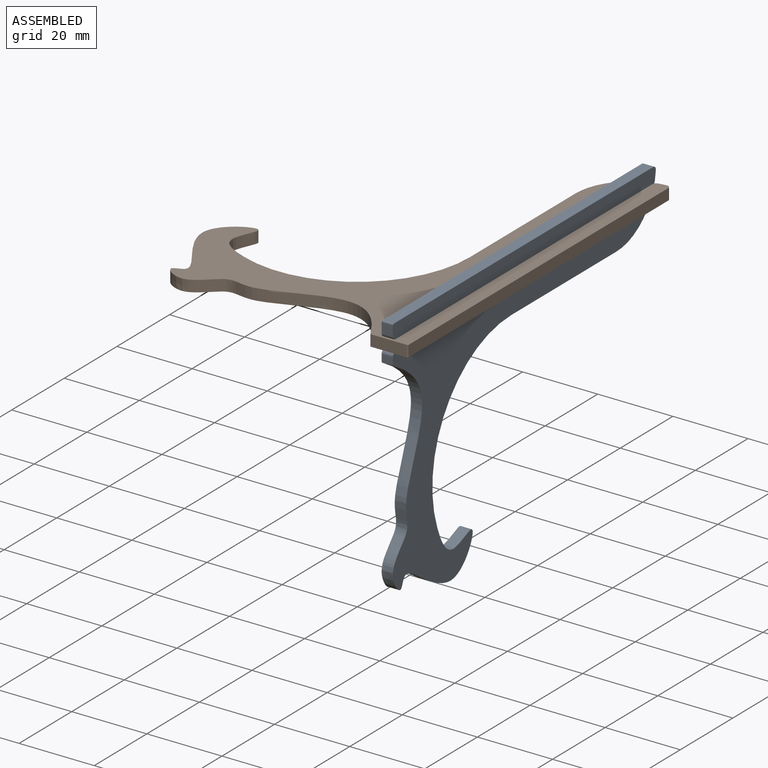
[diagram: assembled view]
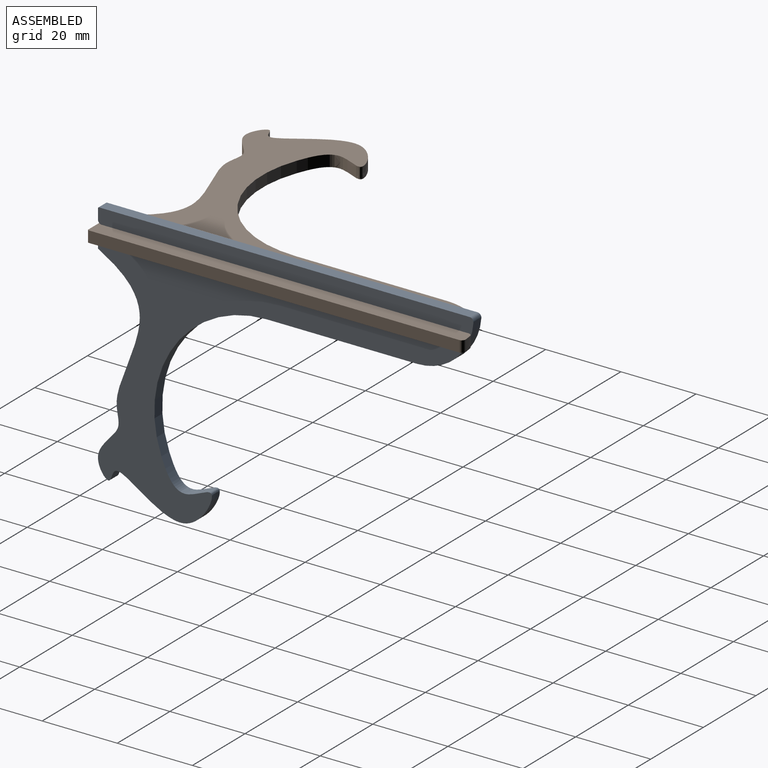
[diagram: assembled view, second angle]
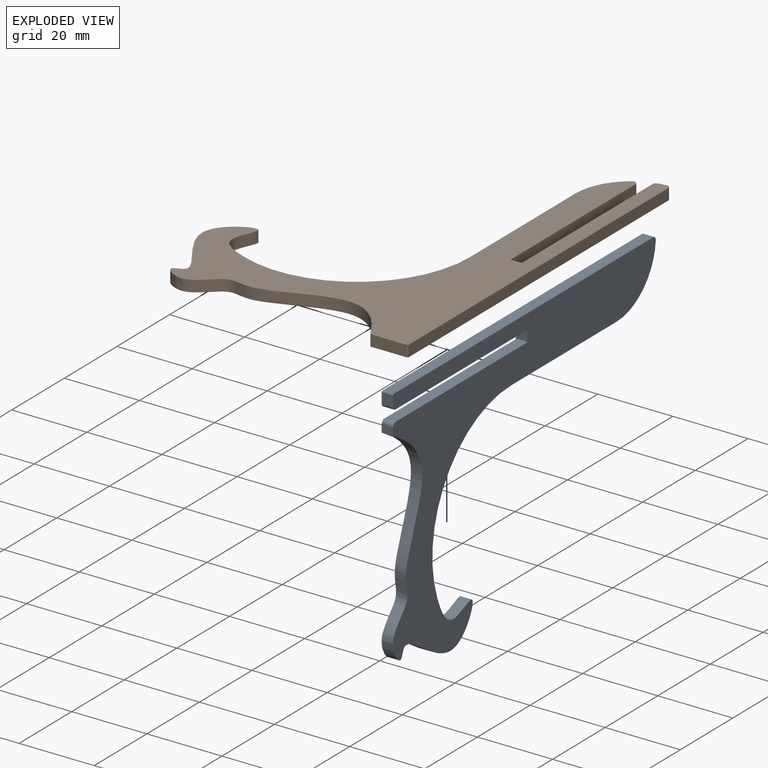
[diagram: exploded view]
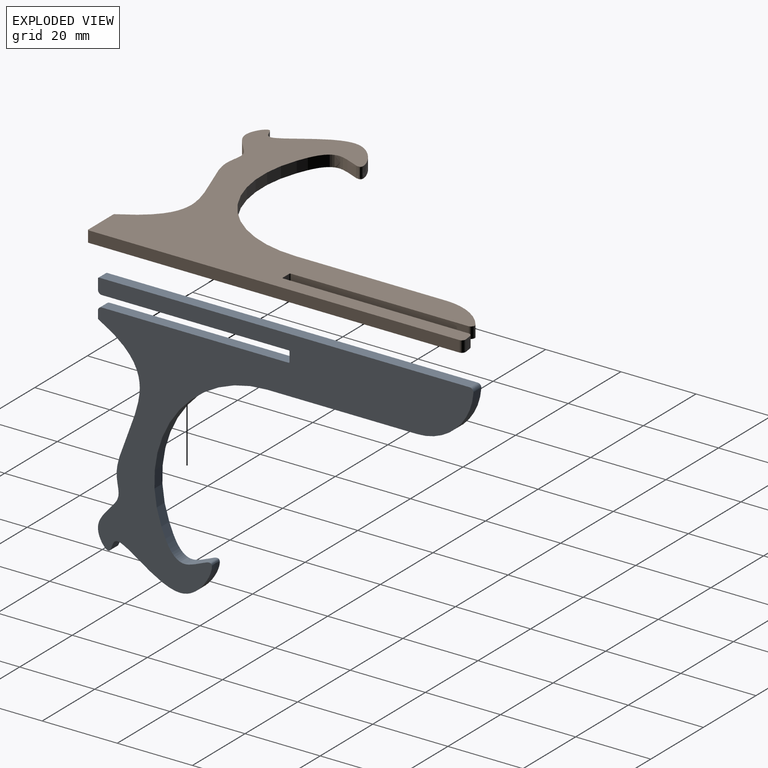
[diagram: exploded view, second angle]
ASSEMBLY  parts=2 mates=4
PART A: 18 faces, bbox 71.1x101x3 mm
  f0: plane 49.7x3mm, normal (1,0,0), area 149.1mm2, adj f1,f15,f16,f17
  f1: cylinder r=0.3mm len=3mm, axis (0,0,-1), area 1.4mm2, adj f0,f2,f16,f17
  f2: plane 3x2.4mm, normal (0,-1,0), area 7.2mm2, adj f1,f3,f16,f17
  f3: cylinder r=0.3mm len=3mm, axis (0,0,-1), area 1.4mm2, adj f2,f4,f16,f17
  f4: plane 49.7x3mm, normal (-1,0,0), area 149.1mm2, adj f3,f5,f16,f17
  f5: cylinder r=1mm len=3mm, axis (0,0,-1), area 4.7mm2, adj f4,f6,f16,f17
  f6: plane 3x2.7mm, normal (0,-1,0), area 8.1mm2, adj f5,f7,f16,f17
  f7: cylinder r=0.3mm len=3mm, axis (0,0,-1), area 1.4mm2, adj f6,f8,f16,f17
  f8: plane 98.66x3mm, normal (1,0,0), area 296mm2, adj f7,f9,f16,f17
  f9: cylinder r=1mm len=3mm, axis (0,0,-1), area 4.9mm2, adj f8,f10,f16,f17
  f10: cylinder r=15mm len=14.96mm, axis (0,0,-1), area 67.5mm2, adj f9,f11,f16,f17
  f11: plane 40x3mm, normal (-1,0,0), area 120mm2, adj f10,f12,f16,f17
  f12: cylinder r=30mm len=40.48mm, axis (0,0,-1), area 173.5mm2, adj f11,f13,f16,f17
  f13: extruded ~59.99x30.34mm, area 358.6mm2, adj f12,f14,f16,f17
  f14: plane 3x2mm, normal (0,-1,0), area 6mm2, adj f13,f15,f16,f17
  f15: cylinder r=1mm len=3mm, axis (0,0,-1), area 4.7mm2, adj f0,f14,f16,f17
  f16: plane 101.03x71.06mm, normal (0,0,1), area 2021.9mm2, adj f0,f1,f2,f3,f4,f5,f6,f7
  f17: plane 101.03x71.06mm, normal (0,0,-1), area 2021.9mm2, adj f0,f1,f2,f3,f4,f5,f6,f7
PART B: 18 faces, bbox 71.1x101x3 mm
  f0: plane 47.19x3mm, normal (1,0,0), area 141.6mm2, adj f1,f15,f16,f17
  f1: cylinder r=1mm len=3mm, axis (0,0,-1), area 6.5mm2, adj f0,f2,f16,f17
  f2: cylinder r=15mm len=12.31mm, axis (0,0,-1), area 43.3mm2, adj f1,f3,f16,f17
  f3: plane 40x3mm, normal (-1,0,0), area 120mm2, adj f2,f4,f16,f17
  f4: cylinder r=30mm len=40.48mm, axis (0,0,-1), area 173.5mm2, adj f3,f5,f16,f17
  f5: extruded ~59.99x30.34mm, area 358.6mm2, adj f4,f6,f16,f17
  f6: plane 9.7x3mm, normal (0,-1,0), area 29.1mm2, adj f5,f7,f16,f17
  f7: cylinder r=0.3mm len=3mm, axis (0,0,-1), area 1.4mm2, adj f6,f8,f16,f17
  f8: plane 98.66x3mm, normal (1,0,0), area 296mm2, adj f7,f9,f16,f17
  f9: cylinder r=1mm len=3mm, axis (0,0,-1), area 4.9mm2, adj f8,f10,f16,f17
  f10: cylinder r=15mm len=3mm, axis (0,0,-1), area 6.5mm2, adj f9,f11,f16,f17
  f11: cylinder r=1mm len=3mm, axis (0,0,-1), area 4.1mm2, adj f10,f12,f16,f17
  f12: plane 49.37x3mm, normal (-1,0,0), area 148.1mm2, adj f11,f13,f16,f17
  f13: cylinder r=0.3mm len=3mm, axis (0,0,-1), area 1.4mm2, adj f12,f14,f16,f17
  f14: plane 3x2.4mm, normal (0,1,0), area 7.2mm2, adj f13,f15,f16,f17
  f15: cylinder r=0.3mm len=3mm, axis (0,0,-1), area 1.4mm2, adj f0,f14,f16,f17
  f16: plane 101.03x71.06mm, normal (0,0,1), area 2024.6mm2, adj f0,f1,f2,f3,f4,f5,f6,f7
  f17: plane 101.03x71.06mm, normal (0,0,-1), area 2024.6mm2, adj f0,f1,f2,f3,f4,f5,f6,f7
PLACE A rot(axis=(0,-1,0),90deg) t=(-7.71,-52.55,35.33)mm
PLACE B t=(-3.71,-52.55,28.33)mm fixed
MATE parallel A.f17 <-> B.f12  axis (1,0,0) through (-7.71,-14.21,15.04)mm
MATE parallel B.f6 <-> A.f6  axis (0,-1,0) through (-8.86,-52.55,29.83)mm
MATE parallel A.f0 <-> B.f16  axis (0,0,1) through (-9.21,-26.7,28.33)mm
MATE parallel B.f16 <-> A.f4  axis (0,0,1) through (-23.98,-17.85,31.33)mm
